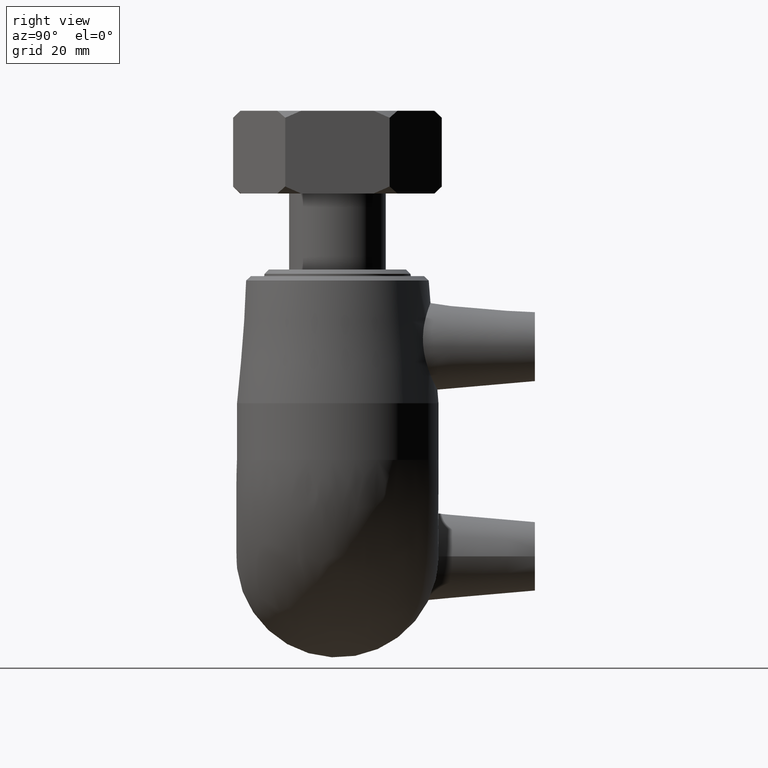
[diagram: clean part render]
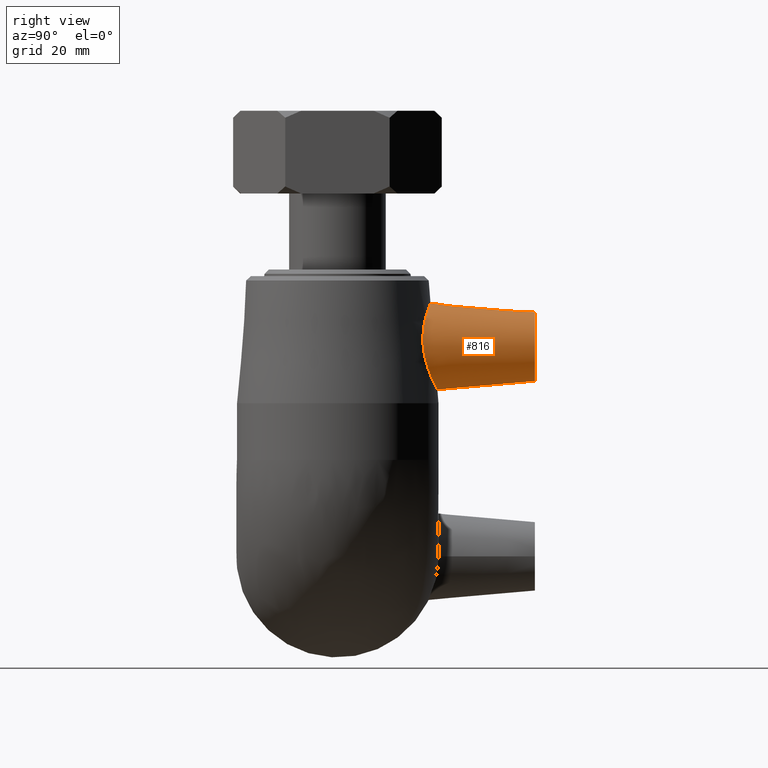
[diagram: same view with one face highlighted and labeled with its STEP entity id]
A machine part, right view. The second image highlights one B-rep face of the part: STEP entity #816.
In plain terms, the highlighted conical surface has half-angle 5 deg.
Its self-contained STEP definition (entity closure, byte-faithful):
#18=B_SPLINE_CURVE_WITH_KNOTS('',3,(#1435,#1436,#1437,#1438,#1439,#1440,
#1441,#1442,#1443,#1444,#1445,#1446,#1447,#1448,#1449,#1450,#1451,#1452,
#1453,#1454,#1455,#1456,#1457,#1458,#1459,#1460,#1461,#1462,#1463,#1464,
#1465,#1466,#1467,#1468),.UNSPECIFIED.,.T.,.F.,(4,2,2,2,2,2,2,2,2,2,2,2,
2,2,2,2,4),(0.,0.352700193411278,0.705400386822555,1.06065997794798,1.4159195690734,
1.77117916019882,2.12643875132425,2.47913894473552,2.8318391381468,3.21426147151368,
3.59668380488056,3.96833233978789,4.33998087469521,4.71162940960254,5.08327794450986,
5.46570027787674,5.84812261124363),.UNSPECIFIED.);
#149=FACE_BOUND('',#303,.T.);
#209=FACE_OUTER_BOUND('',#302,.T.);
#302=EDGE_LOOP('',(#722));
#303=EDGE_LOOP('',(#723));
#368=CIRCLE('',#927,7.5);
#430=VERTEX_POINT('',#1434);
#446=VERTEX_POINT('',#1543);
#526=EDGE_CURVE('',#430,#430,#18,.T.);
#543=EDGE_CURVE('',#446,#446,#368,.T.);
#722=ORIENTED_EDGE('',*,*,#543,.T.);
#723=ORIENTED_EDGE('',*,*,#526,.F.);
#763=CONICAL_SURFACE('',#926,7.5,5.);
#816=ADVANCED_FACE('',(#209,#149),#763,.T.);
#926=AXIS2_PLACEMENT_3D('',#1542,#1154,#1155);
#927=AXIS2_PLACEMENT_3D('',#1544,#1156,#1157);
#1154=DIRECTION('center_axis',(0.,-1.,0.));
#1155=DIRECTION('ref_axis',(6.12323399573676E-17,0.,-1.));
#1156=DIRECTION('center_axis',(0.,-1.,0.));
#1157=DIRECTION('ref_axis',(6.12323399573676E-17,0.,-1.));
#1434=CARTESIAN_POINT('',(9.62136636545365,18.6527359345863,46.0602682614864));
#1435=CARTESIAN_POINT('Ctrl Pts',(9.62136636545365,18.6527359345863,46.0602682614863));
#1436=CARTESIAN_POINT('Ctrl Pts',(9.57864474688505,18.5699124519759,47.2322361625234));
#1437=CARTESIAN_POINT('Ctrl Pts',(9.29477438840324,18.6113538782614,48.4680337026871));
#1438=CARTESIAN_POINT('Ctrl Pts',(8.26038237665402,18.8985129488541,50.7113065030737));
#1439=CARTESIAN_POINT('Ctrl Pts',(7.51072157983028,19.1349894938284,51.7203517807895));
#1440=CARTESIAN_POINT('Ctrl Pts',(5.82233956886021,19.5832493329027,53.3069823604728));
#1441=CARTESIAN_POINT('Ctrl Pts',(4.76196036847415,19.8268123115242,53.9955728954431));
#1442=CARTESIAN_POINT('Ctrl Pts',(2.44335638516367,20.1704598428399,54.9119048959261));
#1443=CARTESIAN_POINT('Ctrl Pts',(1.18419863708474,20.266058430284,55.1389621646109));
#1444=CARTESIAN_POINT('Ctrl Pts',(-1.18419863708475,20.266058430284,55.1389621646109));
#1445=CARTESIAN_POINT('Ctrl Pts',(-2.44335638516368,20.1704598428399,54.9119048959261));
#1446=CARTESIAN_POINT('Ctrl Pts',(-4.76196036847416,19.8268123115242,53.9955728954431));
#1447=CARTESIAN_POINT('Ctrl Pts',(-5.82233956886021,19.5832493329027,53.3069823604728));
#1448=CARTESIAN_POINT('Ctrl Pts',(-7.51072157983028,19.1349894938284,51.7203517807895));
#1449=CARTESIAN_POINT('Ctrl Pts',(-8.26038237665403,18.8985129488541,50.7113065030737));
#1450=CARTESIAN_POINT('Ctrl Pts',(-9.29477438840325,18.6113538782614,48.4680337026871));
#1451=CARTESIAN_POINT('Ctrl Pts',(-9.57864474688506,18.5699124519759,47.2322361625234));
#1452=CARTESIAN_POINT('Ctrl Pts',(-9.66768814628455,18.7425389743044,44.7895383108989));
#1453=CARTESIAN_POINT('Ctrl Pts',(-9.43829136894649,18.9862188514755,43.4602629554652));
#1454=CARTESIAN_POINT('Ctrl Pts',(-8.45864045551373,19.651715607722,41.04422898226));
#1455=CARTESIAN_POINT('Ctrl Pts',(-7.70910972441214,20.0639278337078,39.9545419235782));
#1456=CARTESIAN_POINT('Ctrl Pts',(-5.9973309042789,20.7794201420516,38.258689345906));
#1457=CARTESIAN_POINT('Ctrl Pts',(-4.92433911740575,21.134551763808,37.5252883473859));
#1458=CARTESIAN_POINT('Ctrl Pts',(-2.54579354816424,21.6294602695051,36.5414476064506));
#1459=CARTESIAN_POINT('Ctrl Pts',(-1.23882844969108,21.7647203034417,36.2921537597489));
#1460=CARTESIAN_POINT('Ctrl Pts',(1.23882844969108,21.7647203034417,36.2921537597489));
#1461=CARTESIAN_POINT('Ctrl Pts',(2.54579354816424,21.6294602695051,36.5414476064506));
#1462=CARTESIAN_POINT('Ctrl Pts',(4.92433911740575,21.134551763808,37.5252883473859));
#1463=CARTESIAN_POINT('Ctrl Pts',(5.99733090427889,20.7794201420516,38.258689345906));
#1464=CARTESIAN_POINT('Ctrl Pts',(7.70910972441213,20.0639278337078,39.9545419235782));
#1465=CARTESIAN_POINT('Ctrl Pts',(8.45864045551372,19.651715607722,41.04422898226));
#1466=CARTESIAN_POINT('Ctrl Pts',(9.43829136894648,18.9862188514755,43.4602629554652));
#1467=CARTESIAN_POINT('Ctrl Pts',(9.66768814628454,18.7425389743044,44.7895383108988));
#1468=CARTESIAN_POINT('Ctrl Pts',(9.62136636545365,18.6527359345863,46.0602682614863));
#1542=CARTESIAN_POINT('Origin',(-2.79525631905383E-15,43.,45.65));
#1543=CARTESIAN_POINT('',(-2.33601376937358E-15,43.,53.15));
#1544=CARTESIAN_POINT('Origin',(-2.79525631905383E-15,43.,45.65));